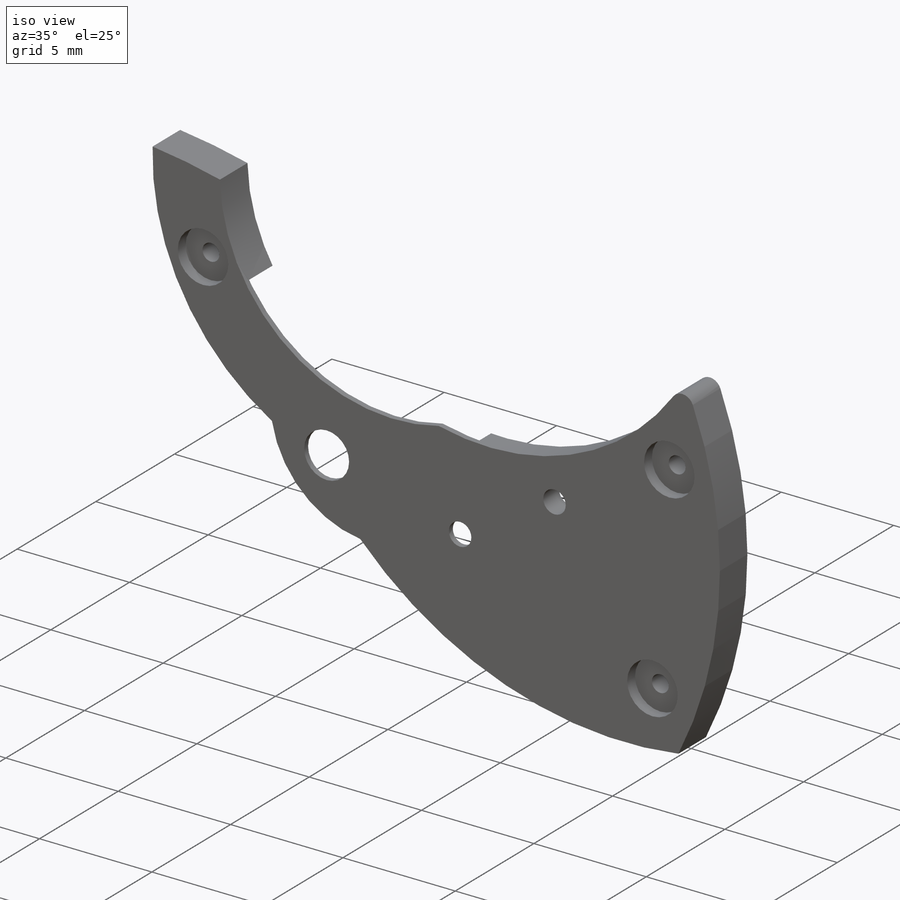
[diagram: iso view]
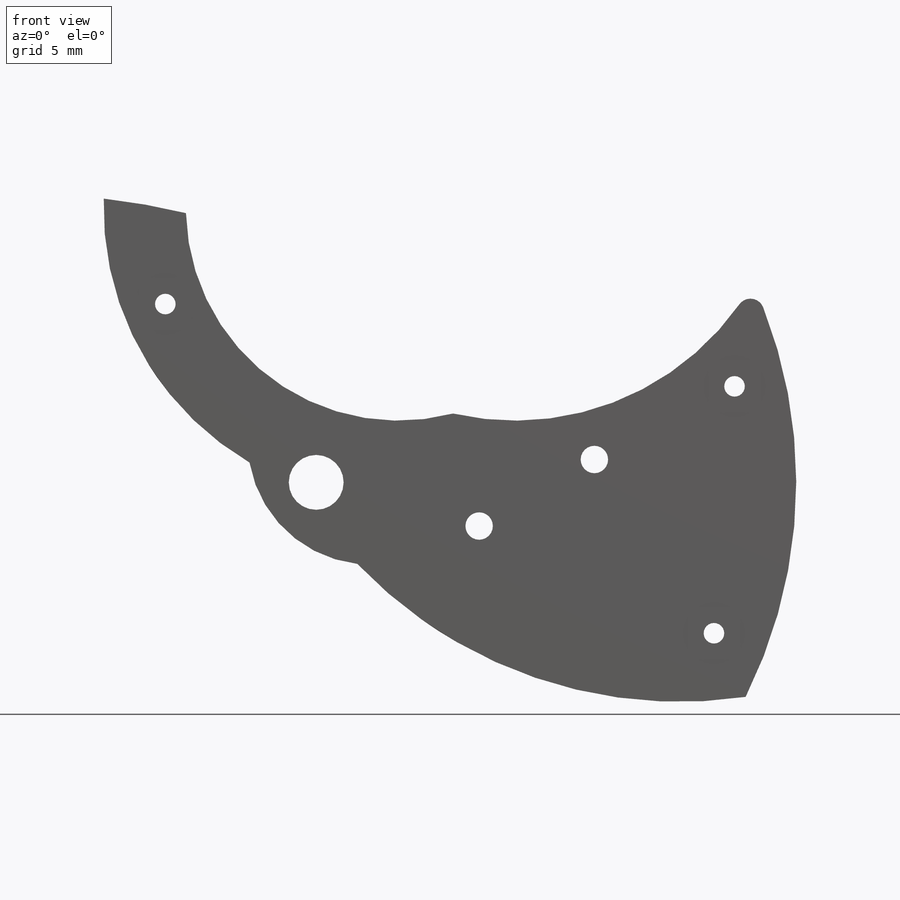
[diagram: front view]
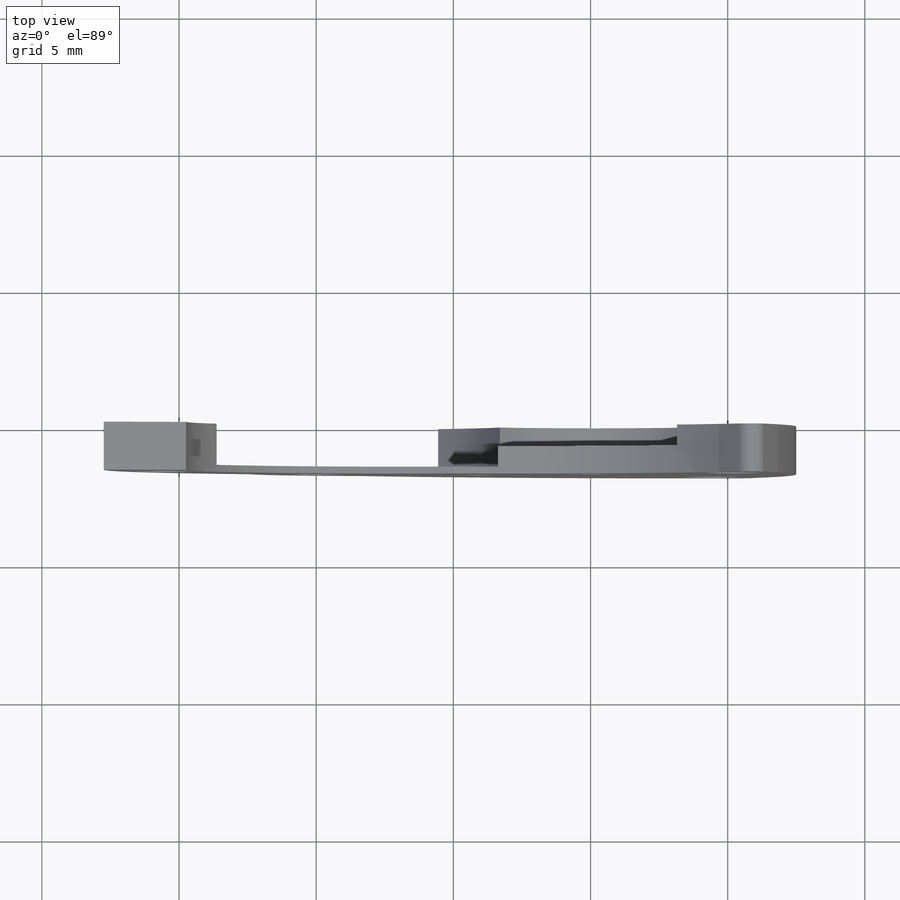
[diagram: top view]
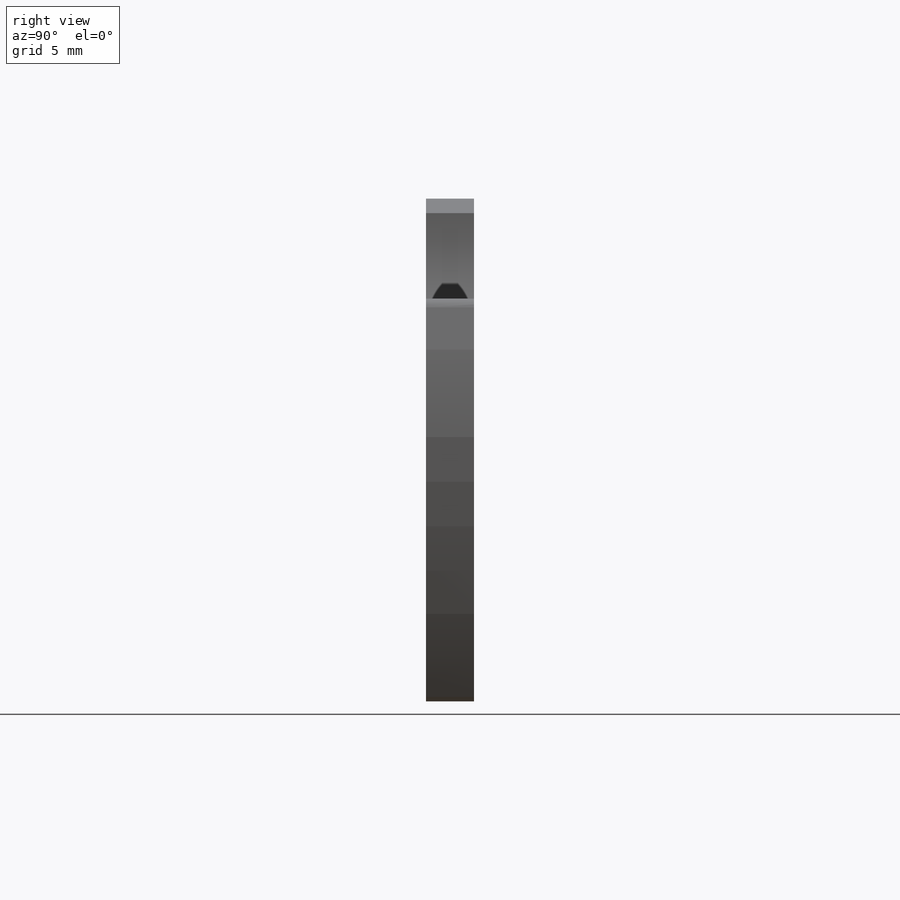
[diagram: right view]
SOLIDWORKS PART (.sldprt)
format: sldprt  version: not decoded by parser v0  size: 423,424 bytes
history: native  units: mm
features: sketch x11, cut_extrude x4, plane x3, thread x3, material x1, extrude x1, revolve x1, sweep x1, chamfer x1, helix x1, cut_revolve x1, delete_body x1, hole x1 (+8 scaffold rows collapsed)
feature tree (38):
  scaffold x8  (default folders/planes/origin — collapsed)
  material  "Material <sin especificar>"
  plane  "Alzado"
  plane  "Planta"
  plane  "Vista lateral"
  sketch  "Croquis1"  dims[c1.D1=1.0mm c1.D2=1.0mm c1.D3=2.0mm c1.D8=10.0mm c1.D9=7.75mm c1.D10=10.75mm c1.D11=16.25mm c1.D12=17.5mm c1.D13=0.5mm c1.D14=24.5mm c1.D17=4.5mm c1.D4=3.0mm c1.D5=10.0mm c1.D6=7.25mm c1.D7=12.25mm c1.D15=10.5mm c1.D16=14.0mm c1.D18=6.0mm c1.D19=1.4mm c1.D20=2.35mm c1.D21=10.25mm c1.D22=2.0mm c1.D23=1.5mm c1.D24=8.25mm c1.D25=13.25mm c1.D26=~7.568602mm c2.D26=~13.134022deg c2.D18=~6.161169mm c3.D18=15.0deg c3.D19=6.15mm c3.D20=~4.609556mm c4.D20=30.0deg c4.D21=4.85mm]
  extrude  "Saliente-Extruir1"  Depth=1.75mm
  sketch  "Croquis2"  dims[D1=9.0mm]
  cut_extrude  "Cortar-Extruir1"  Depth=0.75mm
  sketch  "Croquis3"  dims[D1=14.0mm]
  cut_extrude  "Cortar-Extruir2"  Depth=1.5mm
  sketch  "Croquis4"  dims[D1=2.25mm D2=2.25mm D3=2.25mm D4=3.5mm D5=15.25mm D6=5.5mm D7=14.5mm D8=6.5mm D9=5.5mm]
  cut_extrude  "Cortar-Extruir3"  Depth=0.5mm
  sketch  "Croquis1_Tornillo Corto"  dims[D1=0.75mm D2=0.25mm D3=1.25mm D4=0.5mm]
  revolve  "Revolución1"  [1 undecoded]
  sweep  "Cortar-Barrer3"
  sketch  "Croquis3_Tornillo Corto"
  chamfer  "Chaflán1"  Distance=0.15mm Angle=45deg
  helix  "Hélice/Espiral1"  [1 undecoded]
  sketch  "Croquis2_Tornillo Corto"  dims[D1=0.0mm D3=0.9375mm D4=0.25mm D5=3.75 D7=0.0deg]
  cut_extrude  "Cortar-Extruir6"  [1 undecoded]
  sketch  "Croquis5"  dims[c1.D1=0.1mm c2.D1=0.1mm c3.D1=360.0deg]
  sketch  "Croquis6"
  cut_revolve  "Cortar-Revolución1"  Angle=360deg
  delete_body  "Sólido-Eliminar2"
  hole  "Taladro roscado M1x0.251"  Depth=1.25mm  [1 undecoded]
  sketch  "Croquis8"
  sketch  "Croquis7"  dims[hole-wizard template sketch: 61 standard entries collapsed; hole parameters above]
  thread  "Rosca de taladro1"  Diameter=1mm  [1 undecoded]
  thread  "Rosca de taladro2"  Diameter=1mm  [1 undecoded]
  thread  "Rosca de taladro3"  Diameter=1mm  [1 undecoded]
decode coverage: 18 of 26 modeling features carry decoded parameters
note: ~ marks probable driven/reference dimensions
note: 7 parameter values undecoded
summary: no parameter record found for 4 features
note: suppression state not decoded; provenance and decode notes live in map.json
